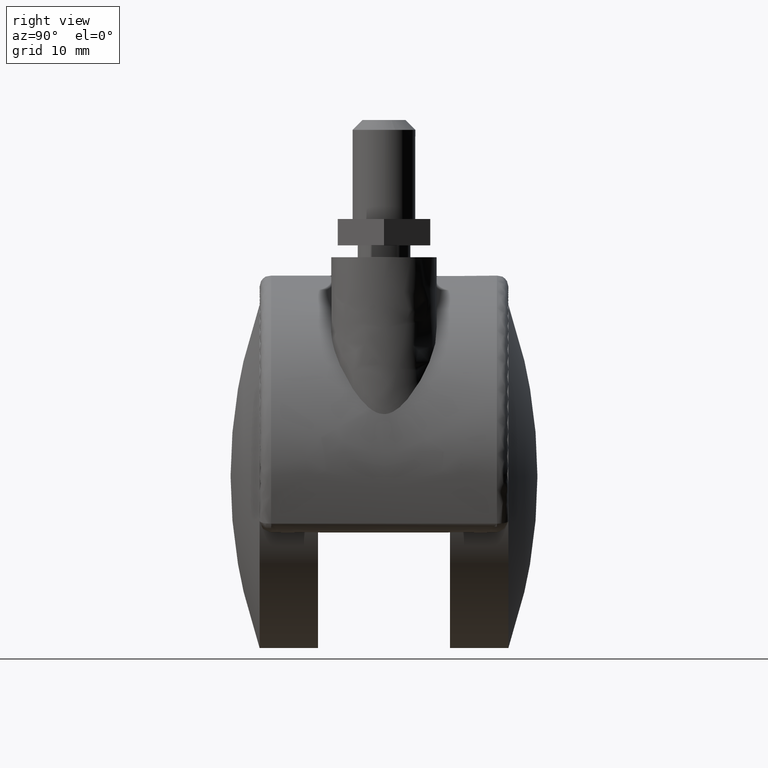
[diagram: clean part render]
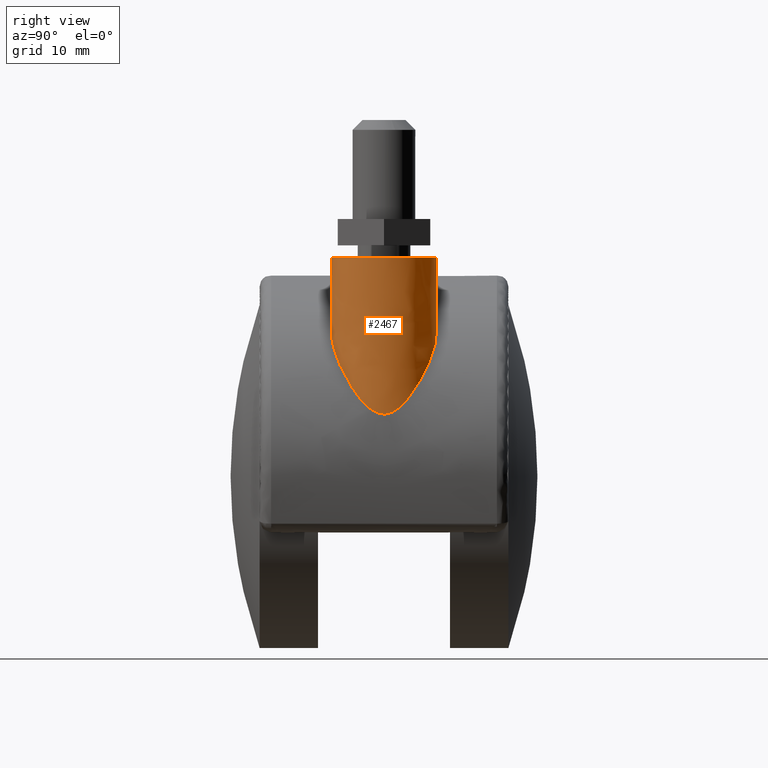
[diagram: same view with one face highlighted and labeled with its STEP entity id]
A machine part, right view. The second image highlights one B-rep face of the part: STEP entity #2467.
In plain terms, the highlighted face is a freeform B-spline surface patch.
Its self-contained STEP definition (entity closure, byte-faithful):
#2153=CARTESIAN_POINT('',(21.170517451781809,-7.998182530965257,33.200000000000003));
#2154=VERTEX_POINT('',#2153);
#2172=CARTESIAN_POINT('',(20.372327234096840,7.975338669858695,33.200000000000003));
#2173=VERTEX_POINT('',#2172);
#2187=CARTESIAN_POINT('',(20.372331091017440,7.975339012096953,22.698406674391141));
#2188=VERTEX_POINT('',#2187);
#2189=CARTESIAN_POINT('',(20.372327234096840,7.975338669858695,33.200000000000003));
#2190=CARTESIAN_POINT('',(20.372331091017440,7.975339012096953,22.698406674391141));
#2191=QUASI_UNIFORM_CURVE('',1,(#2189,#2190),.UNSPECIFIED.,.F.,.U.);
#2192=EDGE_CURVE('',#2173,#2188,#2191,.T.);
#2244=CARTESIAN_POINT('',(21.170517570596040,-7.998188154073477,21.955847994155739));
#2245=VERTEX_POINT('',#2244);
#2303=CARTESIAN_POINT('',(21.170517451781809,-7.998182530965257,33.200000000000003));
#2304=CARTESIAN_POINT('',(21.170517570596040,-7.998188154073477,21.955847994155739));
#2305=QUASI_UNIFORM_CURVE('',1,(#2303,#2304),.UNSPECIFIED.,.F.,.U.);
#2306=EDGE_CURVE('',#2154,#2245,#2305,.T.);
#2311=CARTESIAN_POINT('',(20.372327234177259,7.975338669865023,33.793811463376819));
#2312=CARTESIAN_POINT('',(28.347665904042280,8.603011435687769,33.793811463376827));
#2313=CARTESIAN_POINT('',(28.975338669865032,0.627672765822746,33.793811463376819));
#2314=CARTESIAN_POINT('',(29.603011435687772,-7.347665904042277,33.793811463376827));
#2315=CARTESIAN_POINT('',(21.627672765822741,-7.975338669865023,33.793811463376819));
#2316=CARTESIAN_POINT('',(21.399421999528442,-7.993302394756411,33.793811463376827));
#2317=CARTESIAN_POINT('',(21.170517451743830,-7.998182530966067,33.793811463376827));
#2318=CARTESIAN_POINT('',(20.372327234177259,7.975338669865023,8.838884714966529));
#2319=CARTESIAN_POINT('',(28.347665904042280,8.603011435687769,8.838884714966529));
#2320=CARTESIAN_POINT('',(28.975338669865032,0.627672765822746,8.838884714966529));
#2321=CARTESIAN_POINT('',(29.603011435687772,-7.347665904042277,8.838884714966529));
#2322=CARTESIAN_POINT('',(21.627672765822741,-7.975338669865023,8.838884714966529));
#2323=CARTESIAN_POINT('',(21.399421999528442,-7.993302394756411,8.838884714966529));
#2324=CARTESIAN_POINT('',(21.170517451743830,-7.998182530966067,8.838884714966529));
#2332=(BOUNDED_SURFACE()B_SPLINE_SURFACE(2,1,((#2311,#2318),(#2312,#2319),(#2313,#2320),(#2314,#2321),(#2315,#2322),(#2316,#2323),(#2317,#2324)),.UNSPECIFIED.,.F.,.F.,.U.)B_SPLINE_SURFACE_WITH_KNOTS((3,2,2,3),(2,2),(0.0,13.254833995939039,26.509667991878072,27.039861351715629),(0.0,24.954926748410291),.UNSPECIFIED.)GEOMETRIC_REPRESENTATION_ITEM()RATIONAL_B_SPLINE_SURFACE(((1.0,1.0),(0.707106781186548,0.707106781186548),(1.0,1.0),(0.707106781186548,0.707106781186548),(1.0,1.0),(0.988284271247462,0.988284271247462),(0.977505800795127,0.977505800795127)))REPRESENTATION_ITEM('')SURFACE());
#2333=CARTESIAN_POINT('',(29.0,0.0,33.200000000000003));
#2334=VERTEX_POINT('',#2333);
#2335=CARTESIAN_POINT('',(29.0,0.0,33.200000000000003));
#2336=CARTESIAN_POINT('',(29.000000000000004,-7.831261682632346,33.200000000000010));
#2337=CARTESIAN_POINT('',(21.170517451781816,-7.998182530965257,33.200000000000010));
#2345=(BOUNDED_CURVE()B_SPLINE_CURVE(2,(#2335,#2336,#2337),.UNSPECIFIED.,.F.,.U.)B_SPLINE_CURVE_WITH_KNOTS((3,3),(0.500000000000000,0.746248196889189),.UNSPECIFIED.)CURVE()GEOMETRIC_REPRESENTATION_ITEM()RATIONAL_B_SPLINE_CURVE((1.0,0.711502291944466,0.991340907211644))REPRESENTATION_ITEM(''));
#2346=EDGE_CURVE('',#2334,#2154,#2345,.T.);
#2347=ORIENTED_EDGE('',*,*,#2346,.T.);
#2348=ORIENTED_EDGE('',*,*,#2306,.T.);
#2349=CARTESIAN_POINT('',(28.999895866510808,-0.040818194267602,9.447541464927753));
#2350=VERTEX_POINT('',#2349);
#2351=CARTESIAN_POINT('',(28.999895866510808,-0.040818194267602,9.447541464927753));
#2352=CARTESIAN_POINT('',(28.999466214408979,-0.125024985761245,9.448860311507323));
#2353=CARTESIAN_POINT('',(28.997705745496152,-0.209561128017436,9.454266917218384));
#2354=CARTESIAN_POINT('',(28.991454197050171,-0.379305719176543,9.473419918093274));
#2355=CARTESIAN_POINT('',(28.987015024879980,-0.463088870802789,9.487006303984074));
#2356=CARTESIAN_POINT('',(28.970064659284969,-0.710992778104979,9.538693229067414));
#2357=CARTESIAN_POINT('',(28.953926323659921,-0.871891599050404,9.587716465261485));
#2358=CARTESIAN_POINT('',(28.923331552824099,-1.107746051056898,9.679459219860833));
#2359=CARTESIAN_POINT('',(28.912041694407382,-1.185534532033239,9.713149823777863));
#2360=CARTESIAN_POINT('',(28.887826855472390,-1.337192275391238,9.784931984983007));
#2361=CARTESIAN_POINT('',(28.874865232686421,-1.411374722773494,9.823133995842207));
#2362=CARTESIAN_POINT('',(28.833657710783850,-1.629642223001002,9.943711528936593));
#2363=CARTESIAN_POINT('',(28.803101660287311,-1.769477290136857,10.032015601056790));
#2364=CARTESIAN_POINT('',(28.736689946539499,-2.040361091664412,10.220697288736231));
#2365=CARTESIAN_POINT('',(28.700828200058151,-2.171396421399778,10.321094023708220));
#2366=CARTESIAN_POINT('',(28.624322384137312,-2.426401598566568,10.531414394042590));
#2367=CARTESIAN_POINT('',(28.584073826983481,-2.549049295761523,10.640248567641891));
#2368=CARTESIAN_POINT('',(28.458199956339769,-2.904922855426706,10.974403051372070));
#2369=CARTESIAN_POINT('',(28.367367485436869,-3.126647320223306,11.207552820653010));
#2370=CARTESIAN_POINT('',(28.173392156563370,-3.549150549939596,11.686605684430020));
#2371=CARTESIAN_POINT('',(28.070221762861291,-3.749794647455663,11.932612459985309));
#2372=CARTESIAN_POINT('',(27.852034721621319,-4.135046907100209,12.433372493193190));
#2373=CARTESIAN_POINT('',(27.737008617205991,-4.319604242075376,12.688165276117680));
#2374=CARTESIAN_POINT('',(27.555592540315391,-4.586475677422900,13.075152555868950));
#2375=CARTESIAN_POINT('',(27.493559783683310,-4.673858919790865,13.205115626275409));
#2376=CARTESIAN_POINT('',(27.367112095094889,-4.844704085381898,13.465217552543610));
#2377=CARTESIAN_POINT('',(27.302654777020820,-4.928237472668623,13.595453176760500));
#2378=CARTESIAN_POINT('',(27.105583144384742,-5.173571513873103,13.986514550004321));
#2379=CARTESIAN_POINT('',(26.969273060727211,-5.330130634835134,14.247684951109150));
#2380=CARTESIAN_POINT('',(26.545398640022800,-5.780889120983929,15.031456428055010));
#2381=CARTESIAN_POINT('',(26.242942875101448,-6.056380979743837,15.554244844894059));
#2382=CARTESIAN_POINT('',(25.596047715978852,-6.560833574937910,16.597256531219760));
#2383=CARTESIAN_POINT('',(25.251620093372001,-6.789724648309830,17.117521711041380));
#2384=CARTESIAN_POINT('',(24.700415176599272,-7.095846833481302,17.895263442960399));
#2385=CARTESIAN_POINT('',(24.510904108248141,-7.191641958206220,18.154080016155419));
#2386=CARTESIAN_POINT('',(24.217414787207261,-7.325280557553059,18.541657912420330));
#2387=CARTESIAN_POINT('',(24.118028007192891,-7.368146676741992,18.670759027235739));
#2388=CARTESIAN_POINT('',(23.917272475388572,-7.449912960469409,18.927244777650500));
#2389=CARTESIAN_POINT('',(23.815763562203479,-7.488879464101702,19.054816771505848));
#2390=CARTESIAN_POINT('',(23.302512003680711,-7.673908433252922,19.689316406671889));
#2391=CARTESIAN_POINT('',(22.873693819556511,-7.790796551579367,20.186160793838830));
#2392=CARTESIAN_POINT('',(22.023188638046641,-7.944828472284153,21.108807958559350));
#2393=CARTESIAN_POINT('',(21.605229193750841,-7.988978886596056,21.536694956322378));
#2394=CARTESIAN_POINT('',(21.170517570596040,-7.998188154073477,21.955847994155739));
#2395=B_SPLINE_CURVE_WITH_KNOTS('',3,(#2351,#2352,#2353,#2354,#2355,#2356,#2357,#2358,#2359,#2360,#2361,#2362,#2363,#2364,#2365,#2366,#2367,#2368,#2369,#2370,#2371,#2372,#2373,#2374,#2375,#2376,#2377,#2378,#2379,#2380,#2381,#2382,#2383,#2384,#2385,#2386,#2387,#2388,#2389,#2390,#2391,#2392,#2393,#2394),.UNSPECIFIED.,.F.,.U.,(4,2,2,2,2,2,2,2,2,2,2,2,2,2,2,2,2,2,2,2,2,4),(0.499999999999988,0.503906249999988,0.507812499999988,0.515624999999988,0.519531249999988,0.523437499999988,0.531249999999988,0.539062499999988,0.546874999999988,0.562499999999988,0.578124999999989,0.593749999999989,0.601562499999989,0.609374999999989,0.624999999999989,0.656249999999989,0.687499999999989,0.703124999999989,0.710937499999989,0.718749999999989,0.749999999999990,0.778072405911495),.UNSPECIFIED.);
#2396=EDGE_CURVE('',#2350,#2245,#2395,.T.);
#2397=ORIENTED_EDGE('',*,*,#2396,.F.);
#2398=CARTESIAN_POINT('',(20.372331091017440,7.975339012096953,22.698406674391141));
#2399=CARTESIAN_POINT('',(20.476814394860860,7.983562123295528,22.604630629446088));
#2400=CARTESIAN_POINT('',(20.580907080667490,7.989688728667493,22.509902617954239));
#2401=CARTESIAN_POINT('',(20.808398575754399,7.998664615754803,22.299965976334441));
#2402=CARTESIAN_POINT('',(20.931859134815561,8.000643388904575,22.184124391489799));
#2403=CARTESIAN_POINT('',(21.543070492582519,7.996509522895173,21.600981826078868));
#2404=CARTESIAN_POINT('',(22.010563826394218,7.948979957824675,21.123989728706562));
#2405=CARTESIAN_POINT('',(22.906418467171250,7.782871204991352,20.149041881917348));
#2406=CARTESIAN_POINT('',(23.334753686592681,7.664155590043879,19.651089642469032));
#2407=CARTESIAN_POINT('',(23.949518855898880,7.439617401009746,18.888536715977541));
#2408=CARTESIAN_POINT('',(24.149807470361129,7.356977698999828,18.631748963825750));
#2409=CARTESIAN_POINT('',(24.443417447757142,7.221804288386003,18.242681655423549));
#2410=CARTESIAN_POINT('',(24.539962741718231,7.174955753647552,18.112588053615060));
#2411=CARTESIAN_POINT('',(24.729808213643199,7.078125214873129,17.852512768600850));
#2412=CARTESIAN_POINT('',(24.823213715242360,7.028095187000134,17.722391950707841));
#2413=CARTESIAN_POINT('',(25.282885525258799,6.770131609125193,17.071376893470109));
#2414=CARTESIAN_POINT('',(25.627173824347420,6.538983262560786,16.549187609240761));
#2415=CARTESIAN_POINT('',(26.273195011555309,6.030128941236733,15.503125762867310));
#2416=CARTESIAN_POINT('',(26.574915101893009,5.752493431060155,14.979209381625500));
#2417=CARTESIAN_POINT('',(26.997332067371850,5.298556812022928,14.194440738368931));
#2418=CARTESIAN_POINT('',(27.133096739533588,5.140943684048899,13.933054765956889));
#2419=CARTESIAN_POINT('',(27.394656612243800,4.811709268906970,13.411478669909600));
#2420=CARTESIAN_POINT('',(27.520528491662599,4.639995789144180,13.151118811368280));
#2421=CARTESIAN_POINT('',(27.761946750676991,4.280529278262414,12.633516691286459));
#2422=CARTESIAN_POINT('',(27.876833384317958,4.093798948823909,12.377691081905130));
#2423=CARTESIAN_POINT('',(28.094863923116971,3.703098085259662,11.874498455323129));
#2424=CARTESIAN_POINT('',(28.198018857548529,3.499190842336803,11.627086494192451));
#2425=CARTESIAN_POINT('',(28.343495568804279,3.176006322280874,11.265569639154140));
#2426=CARTESIAN_POINT('',(28.390390401362041,3.065446992616508,11.146798759158710));
#2427=CARTESIAN_POINT('',(28.480324761223990,2.838939642872145,10.914966737159270));
#2428=CARTESIAN_POINT('',(28.523438293811591,2.722838455020216,10.801721348187980));
#2429=CARTESIAN_POINT('',(28.605720469903041,2.483745245447467,10.581893969502930));
#2430=CARTESIAN_POINT('',(28.644891569266768,2.360761302963278,10.475303362454101));
#2431=CARTESIAN_POINT('',(28.718904750579931,2.106198421008185,10.270652880446541));
#2432=CARTESIAN_POINT('',(28.753751664361118,1.974634738169228,10.172576804782249));
#2433=CARTESIAN_POINT('',(28.802297897142509,1.768927640474581,10.033942519912490));
#2434=CARTESIAN_POINT('',(28.817856910993399,1.698957086924375,9.989152862646066));
#2435=CARTESIAN_POINT('',(28.847608145763150,1.555759908177278,9.902906615054691));
#2436=CARTESIAN_POINT('',(28.861778567918879,1.482596819628976,9.861511324645809));
#2437=CARTESIAN_POINT('',(28.901518192590721,1.260415794472493,9.744690556923846));
#2438=CARTESIAN_POINT('',(28.924514006425149,1.107890082066425,9.676056274873904));
#2439=CARTESIAN_POINT('',(28.952866692780152,0.870772871914611,9.590745333515756));
#2440=CARTESIAN_POINT('',(28.961290072524069,0.790340005134364,9.565260546985297));
#2441=CARTESIAN_POINT('',(28.975870241399470,0.626315699270510,9.521001960369782));
#2442=CARTESIAN_POINT('',(28.981951491652701,0.543459319221662,9.502458468690671));
#2443=CARTESIAN_POINT('',(28.996296208381679,0.294690538853195,9.458633497126327));
#2444=CARTESIAN_POINT('',(29.000755149230400,0.127595414520862,9.444903748324668));
#2445=CARTESIAN_POINT('',(28.999895866510808,-0.040818194267602,9.447541464927753));
#2446=B_SPLINE_CURVE_WITH_KNOTS('',3,(#2398,#2399,#2400,#2401,#2402,#2403,#2404,#2405,#2406,#2407,#2408,#2409,#2410,#2411,#2412,#2413,#2414,#2415,#2416,#2417,#2418,#2419,#2420,#2421,#2422,#2423,#2424,#2425,#2426,#2427,#2428,#2429,#2430,#2431,#2432,#2433,#2434,#2435,#2436,#2437,#2438,#2439,#2440,#2441,#2442,#2443,#2444,#2445),.UNSPECIFIED.,.F.,.U.,(4,2,2,2,2,2,2,2,2,2,2,2,2,2,2,2,2,2,2,2,2,2,2,4),(0.204394584708128,0.210937499999988,0.218749999999987,0.249999999999988,0.281249999999988,0.296874999999988,0.304687499999988,0.312499999999987,0.343749999999987,0.374999999999988,0.390624999999988,0.406249999999988,0.421874999999988,0.437499999999988,0.445312499999988,0.453124999999988,0.460937499999988,0.468749999999988,0.472656249999988,0.476562499999988,0.484374999999988,0.488281249999988,0.492187499999988,0.499999999999988),.UNSPECIFIED.);
#2447=EDGE_CURVE('',#2188,#2350,#2446,.T.);
#2448=ORIENTED_EDGE('',*,*,#2447,.F.);
#2449=ORIENTED_EDGE('',*,*,#2192,.F.);
#2450=CARTESIAN_POINT('',(20.372327234096844,7.975338669858696,33.200000000000003));
#2451=CARTESIAN_POINT('',(20.685679143857858,8.0,33.200000000000003));
#2452=CARTESIAN_POINT('',(21.0,8.0,33.200000000000003));
#2453=CARTESIAN_POINT('',(29.0,8.0,33.200000000000003));
#2454=CARTESIAN_POINT('',(29.0,0.0,33.200000000000003));
#2462=(BOUNDED_CURVE()B_SPLINE_CURVE(2,(#2450,#2451,#2452,#2453,#2454),.UNSPECIFIED.,.F.,.U.)B_SPLINE_CURVE_WITH_KNOTS((3,2,3),(0.236331300629310,0.250000000000000,0.500000000000000),.UNSPECIFIED.)CURVE()GEOMETRIC_REPRESENTATION_ITEM()RATIONAL_B_SPLINE_CURVE((0.969723356164602,0.983986122577301,1.0,0.707106781186548,1.0))REPRESENTATION_ITEM(''));
#2463=EDGE_CURVE('',#2173,#2334,#2462,.T.);
#2464=ORIENTED_EDGE('',*,*,#2463,.T.);
#2465=EDGE_LOOP('',(#2347,#2348,#2397,#2448,#2449,#2464));
#2466=FACE_OUTER_BOUND('',#2465,.T.);
#2467=ADVANCED_FACE('',(#2466),#2332,.T.);